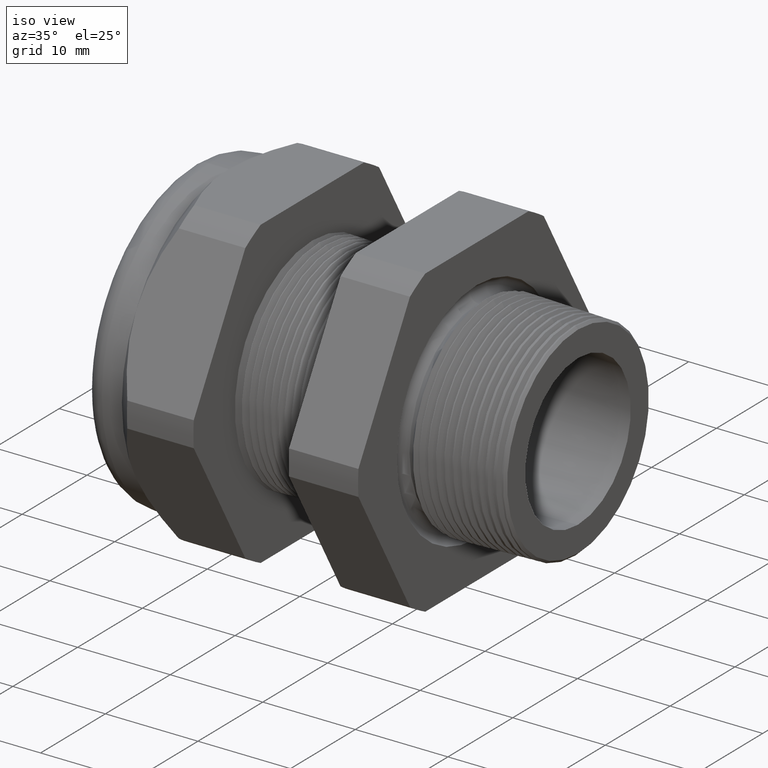
[diagram: clean part render]
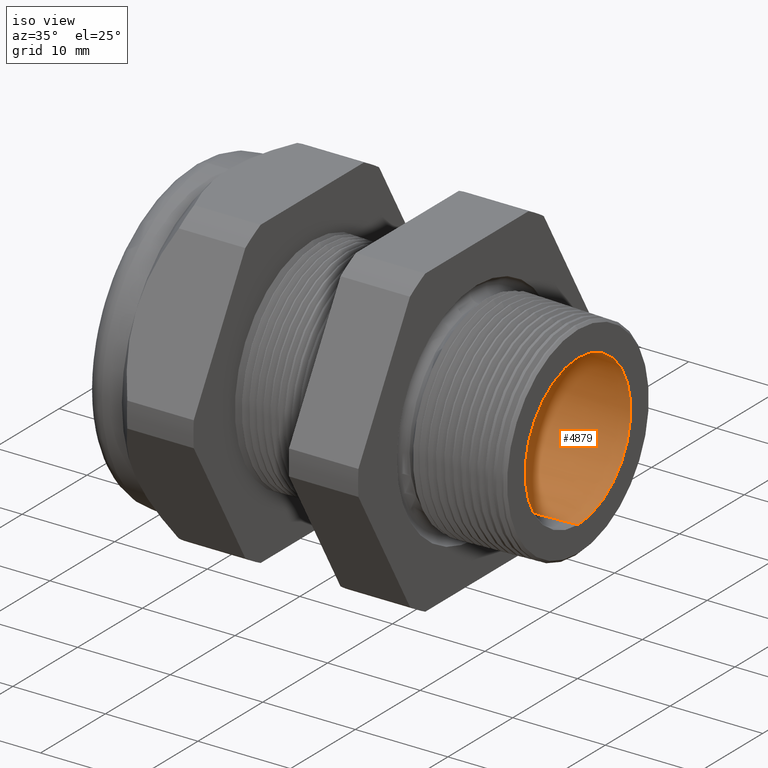
[diagram: same view with one face highlighted and labeled with its STEP entity id]
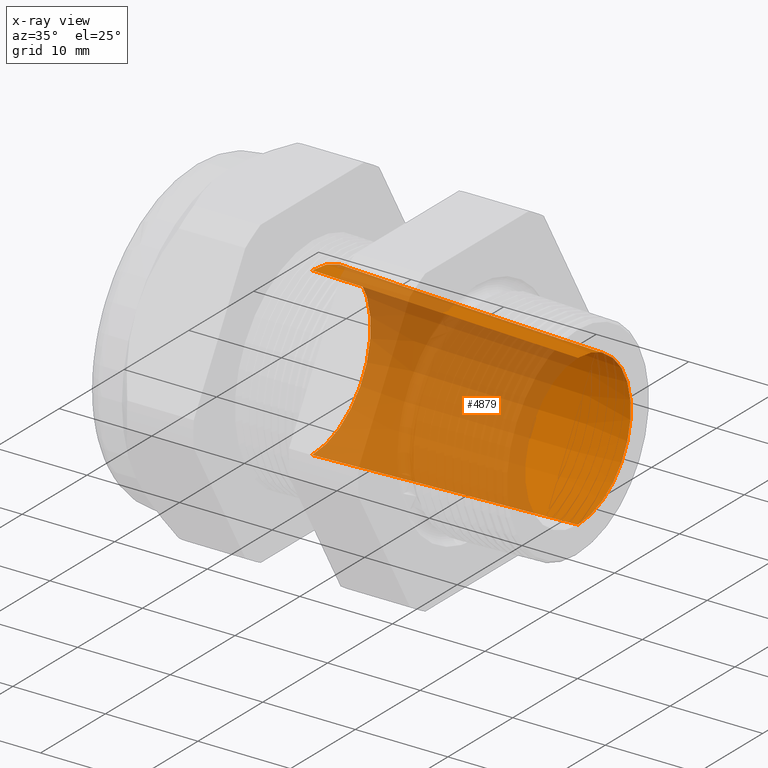
[diagram: x-ray of the same camera — body ghosted, the highlighted face saturated]
A machine part, iso view. The second image highlights one B-rep face of the part: STEP entity #4879.
The next image is the same camera in x-ray: the body ghosted, the highlighted face saturated — about 69% of this face is hidden behind the body in this view.
In plain terms, the highlighted conical surface has half-angle 1.753 deg.
Its self-contained STEP definition (entity closure, byte-faithful):
#207 = VERTEX_POINT ( 'NONE', #890 ) ;
#209 = VERTEX_POINT ( 'NONE', #884 ) ;
#230 = EDGE_CURVE ( 'NONE', #209, #249, #913, .T. ) ;
#249 = VERTEX_POINT ( 'NONE', #998 ) ;
#254 = VERTEX_POINT ( 'NONE', #986 ) ;
#267 = EDGE_CURVE ( 'NONE', #207, #254, #1022, .T. ) ;
#884 = CARTESIAN_POINT ( 'NONE',  ( 0.1200000000000000200, 0.0000000000000000000, 0.3204016610924743100 ) ) ;
#890 = CARTESIAN_POINT ( 'NONE',  ( 0.1200000000000000200, 4.135642411978520400E-017, -0.3204016610924743100 ) ) ;
#910 = DIRECTION ( 'NONE',  ( -0.9995318591926351000, 0.0000000000000000000, 0.03059513783126741000 ) ) ;
#911 = VECTOR ( 'NONE', #910, 39.37007874015748900 ) ;
#912 = CARTESIAN_POINT ( 'NONE',  ( -1.010314960629921100, 0.0000000000000000000, 0.3549999999999999800 ) ) ;
#913 = LINE ( 'NONE', #912, #911 ) ;
#986 = CARTESIAN_POINT ( 'NONE',  ( -1.010314960629921100, 0.0000000000000000000, -0.3549999999999999800 ) ) ;
#998 = CARTESIAN_POINT ( 'NONE',  ( -1.010314960629921100, 4.347496136973103500E-017, 0.3549999999999999800 ) ) ;
#1019 = DIRECTION ( 'NONE',  ( -0.9995318591926351000, 3.746823761453372400E-018, -0.03059513783126741000 ) ) ;
#1020 = VECTOR ( 'NONE', #1019, 39.37007874015748900 ) ;
#1021 = CARTESIAN_POINT ( 'NONE',  ( -1.010314960629921100, 4.347496136973103500E-017, -0.3549999999999999800 ) ) ;
#1022 = LINE ( 'NONE', #1021, #1020 ) ;
#2958 = DIRECTION ( 'NONE',  ( 0.0000000000000000000, 0.0000000000000000000, -1.000000000000000000 ) ) ;
#2959 = DIRECTION ( 'NONE',  ( 1.000000000000000000, 0.0000000000000000000, 0.0000000000000000000 ) ) ;
#2960 = AXIS2_PLACEMENT_3D ( 'NONE', #2966, #2959, #2958 ) ;
#2961 = CIRCLE ( 'NONE', #2960, 0.3204016610924743100 ) ;
#2962 = DIRECTION ( 'NONE',  ( 0.0000000000000000000, 0.0000000000000000000, 1.000000000000000000 ) ) ;
#2963 = DIRECTION ( 'NONE',  ( -1.000000000000000000, 0.0000000000000000000, 0.0000000000000000000 ) ) ;
#2964 = CARTESIAN_POINT ( 'NONE',  ( -1.010314960629921100, 0.0000000000000000000, 0.0000000000000000000 ) ) ;
#2965 = AXIS2_PLACEMENT_3D ( 'NONE', #2964, #2963, #2962 ) ;
#2966 = CARTESIAN_POINT ( 'NONE',  ( 0.1200000000000000200, 0.0000000000000000000, 0.0000000000000000000 ) ) ;
#2967 = CONICAL_SURFACE ( 'NONE', #2965, 0.3549999999999999800, 0.03059991300296905500 ) ;
#2968 = FACE_OUTER_BOUND ( 'NONE', #4880, .T. ) ;
#2969 = DIRECTION ( 'NONE',  ( 0.0000000000000000000, 0.0000000000000000000, -1.000000000000000000 ) ) ;
#2970 = DIRECTION ( 'NONE',  ( 1.000000000000000000, 0.0000000000000000000, 0.0000000000000000000 ) ) ;
#2971 = CARTESIAN_POINT ( 'NONE',  ( -1.010314960629921100, 0.0000000000000000000, 0.0000000000000000000 ) ) ;
#2972 = AXIS2_PLACEMENT_3D ( 'NONE', #2971, #2970, #2969 ) ;
#2973 = CIRCLE ( 'NONE', #2972, 0.3549999999999999800 ) ;
#4878 = EDGE_CURVE ( 'NONE', #254, #249, #2973, .T. ) ;
#4879 = ADVANCED_FACE ( 'NONE', ( #2968 ), #2967, .F. ) ;
#4880 = EDGE_LOOP ( 'NONE', ( #4881, #4882, #4884, #4885 ) ) ;
#4881 = ORIENTED_EDGE ( 'NONE', *, *, #267, .F. ) ;
#4882 = ORIENTED_EDGE ( 'NONE', *, *, #4883, .T. ) ;
#4883 = EDGE_CURVE ( 'NONE', #207, #209, #2961, .T. ) ;
#4884 = ORIENTED_EDGE ( 'NONE', *, *, #230, .T. ) ;
#4885 = ORIENTED_EDGE ( 'NONE', *, *, #4878, .F. ) ;